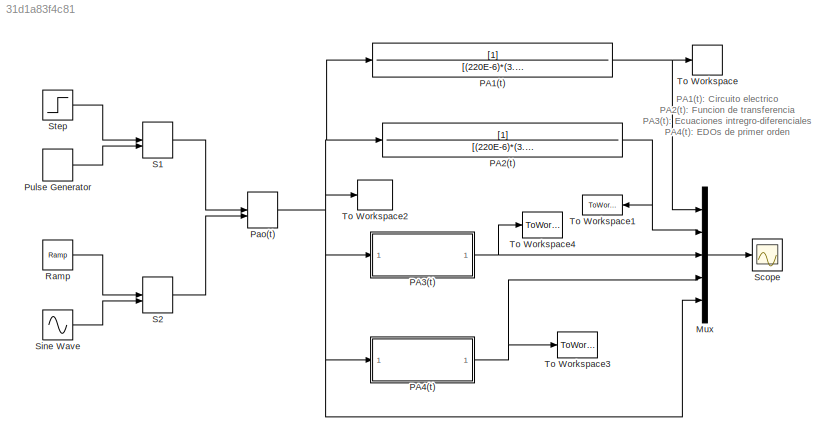
MODEL slx_31d1a83f4c81
KIND model
CONFIG AbsTol = auto
CONFIG EnableMultiTasking = off
CONFIG FixedStep = auto
CONFIG MaxStep = 1E-3
CONFIG MinStep = auto
CONFIG RelTol = 1e-3
CONFIG SampleTimeConstraint = Unconstrained
CONFIG SolverName = ode23t
CONFIG StartTime = 0.0
CONFIG StopTime = 10.0
BLOCK [Mux] Mux
  DisplayOption = bar
  Inputs = 5
BLOCK [TransferFcn] PA1(t)
  Denominator = [(220E-6)*(3.3E-3), (220E-6)*(10E3), 1]
BLOCK [TransferFcn] PA2(t)
  Denominator = [(220E-6)*(3.3E-3), (220E-6)*(10E3), 1]
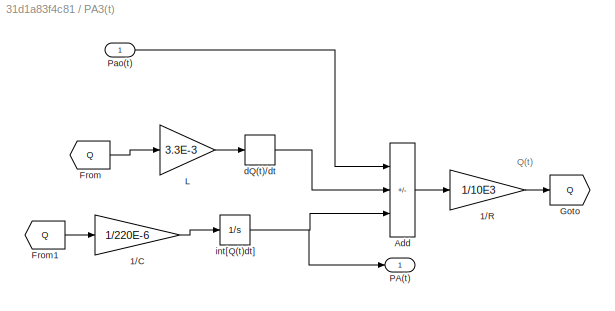
BLOCK [SubSystem] PA3(t)
BLOCK [Gain] PA3(t)/1//C
  Gain = 1/220E-6
BLOCK [Gain] PA3(t)/1//R
  Gain = 1/10E3
BLOCK [Sum] PA3(t)/Add
  IconShape = rectangular
  Inputs = +--
BLOCK [From] PA3(t)/From
  GotoTag = Q
BLOCK [From] PA3(t)/From1
  GotoTag = Q
BLOCK [Goto] PA3(t)/Goto
  GotoTag = Q
BLOCK [Gain] PA3(t)/L
  Gain = 3.3E-3
BLOCK [Outport] PA3(t)/PA(t)
BLOCK [Inport] PA3(t)/Pao(t)
BLOCK [Derivative] PA3(t)/dQ(t)//dt
BLOCK [Integrator] PA3(t)/int[Q(t)dt]
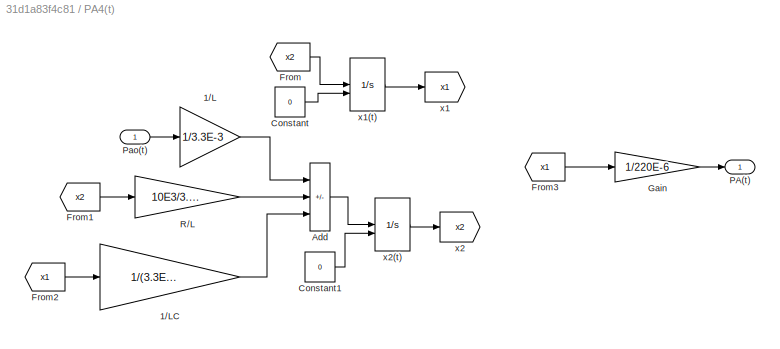
BLOCK [SubSystem] PA4(t)
BLOCK [Gain] PA4(t)/1//L
  Gain = 1/3.3E-3
BLOCK [Gain] PA4(t)/1//LC
  Gain = 1/(3.3E-3*220E-6)
BLOCK [Sum] PA4(t)/Add
  IconShape = rectangular
  Inputs = +--
BLOCK [Constant] PA4(t)/Constant
  Value = 0
BLOCK [Constant] PA4(t)/Constant1
  Value = 0
BLOCK [From] PA4(t)/From
  GotoTag = x2
BLOCK [From] PA4(t)/From1
  GotoTag = x2
BLOCK [From] PA4(t)/From2
  GotoTag = x1
BLOCK [From] PA4(t)/From3
  GotoTag = x1
BLOCK [Gain] PA4(t)/Gain
  Gain = 1/220E-6
BLOCK [Outport] PA4(t)/PA(t)
BLOCK [Inport] PA4(t)/Pao(t)
BLOCK [Gain] PA4(t)/R//L
  Gain = 10E3/3.3E-3
BLOCK [Goto] PA4(t)/x1
  GotoTag = x1
BLOCK [Integrator] PA4(t)/x1(t)
  InitialConditionSource = external
BLOCK [Goto] PA4(t)/x2
  GotoTag = x2
BLOCK [Integrator] PA4(t)/x2(t)
  InitialConditionSource = external
BLOCK [ManualSwitch] Pao(t)
  CurrentSetting = 0
BLOCK [DiscretePulseGenerator] Pulse Generator
  Period = 10
  PhaseDelay = 1
  PulseType = Time based
  PulseWidth = 10
BLOCK [Reference] Ramp  REF=simulink/Sources/Ramp
  SourceBlock = simulink/Sources/Ramp
  SourceType = Ramp
BLOCK [ManualSwitch] S1
  CurrentSetting = 0
BLOCK [ManualSwitch] S2
  CurrentSetting = 0
BLOCK [Scope] Scope
  Floating = off
  NumInputPorts = 1
  ScopeSpecificationString = Simulink.scopes.TimeScopeBlockCfg('CurrentConfiguration', extmgr.ConfigurationSet(extmgr.Configuration('Core','General UI',true,'FigureColor',[1 1 1]),extmgr.Configuration('Core','Source UI',true),extmgr.Configuration('Sources','WiredSimulink',true),extmgr.Configuration('Visuals','Time Domain',true,'SerializedDisplays',{struct('MinYLimReal','-0.125','MaxYLimReal','1.125','YLabelReal','','MinYLimMa...<+2167ch>
BLOCK [Sin] Sine Wave
  Frequency = pi/2
  SampleTime = 0
BLOCK [Step] Step
  Before = 1
  SampleTime = 0
  Time = 0
BLOCK [ToWorkspace] To Workspace
  FixptAsFi = on
  MaxDataPoints = inf
  SampleTime = -1
  VariableName = PA1
BLOCK [ToWorkspace] To Workspace1
  FixptAsFi = on
  MaxDataPoints = inf
  SampleTime = -1
  VariableName = PA2
BLOCK [ToWorkspace] To Workspace2
  FixptAsFi = on
  MaxDataPoints = inf
  SampleTime = -1
  VariableName = Pao
BLOCK [ToWorkspace] To Workspace3
  FixptAsFi = on
  MaxDataPoints = inf
  SampleTime = -1
  VariableName = PA4
BLOCK [ToWorkspace] To Workspace4
  FixptAsFi = on
  MaxDataPoints = inf
  SampleTime = -1
  VariableName = PA3
ANNOTATION (root): PA1(t): Circuito electrico PA2(t): Funcion de transferencia PA3(t): Ecuaciones intregro-diferenciales PA4(t): EDOs de primer orden
ANNOTATION PA3(t): Q(t)
LINE Mux:1 -> Scope:1
NET PA1(t):1 -> Mux:1, To Workspace:1
NET PA2(t):1 -> Mux:2, To Workspace1:1
LINE PA3(t)/1//C:1 -> PA3(t)/int[Q(t)dt]:1
LINE PA3(t)/1//R:1 -> PA3(t)/Goto:1
LINE PA3(t)/Add:1 -> PA3(t)/1//R:1
LINE PA3(t)/From1:1 -> PA3(t)/1//C:1
LINE PA3(t)/From:1 -> PA3(t)/L:1
LINE PA3(t)/L:1 -> PA3(t)/dQ(t)//dt:1
LINE PA3(t)/Pao(t):1 -> PA3(t)/Add:1
LINE PA3(t)/dQ(t)//dt:1 -> PA3(t)/Add:2
NET PA3(t)/int[Q(t)dt]:1 -> PA3(t)/Add:3, PA3(t)/PA(t):1
NET PA3(t):1 -> Mux:3, To Workspace4:1
LINE PA4(t)/1//L:1 -> PA4(t)/Add:1
LINE PA4(t)/1//LC:1 -> PA4(t)/Add:3
LINE PA4(t)/Add:1 -> PA4(t)/x2(t):1
LINE PA4(t)/Constant1:1 -> PA4(t)/x2(t):2
LINE PA4(t)/Constant:1 -> PA4(t)/x1(t):2
LINE PA4(t)/From1:1 -> PA4(t)/R//L:1
LINE PA4(t)/From2:1 -> PA4(t)/1//LC:1
LINE PA4(t)/From3:1 -> PA4(t)/Gain:1
LINE PA4(t)/From:1 -> PA4(t)/x1(t):1
LINE PA4(t)/Gain:1 -> PA4(t)/PA(t):1
LINE PA4(t)/Pao(t):1 -> PA4(t)/1//L:1
LINE PA4(t)/R//L:1 -> PA4(t)/Add:2
LINE PA4(t)/x1(t):1 -> PA4(t)/x1:1
LINE PA4(t)/x2(t):1 -> PA4(t)/x2:1
NET PA4(t):1 -> Mux:4, To Workspace3:1
NET Pao(t):1 -> Mux:5, PA1(t):1, PA2(t):1, PA3(t):1, PA4(t):1, To Workspace2:1
LINE Pulse Generator:1 -> S1:2
LINE Ramp:1 -> S2:1
LINE S1:1 -> Pao(t):1
LINE S2:1 -> Pao(t):2
LINE Sine Wave:1 -> S2:2
LINE Step:1 -> S1:1
note: NET lines group one-source signal fan-out (src -> all destinations, sorted); 1:1 wires keep LINE
